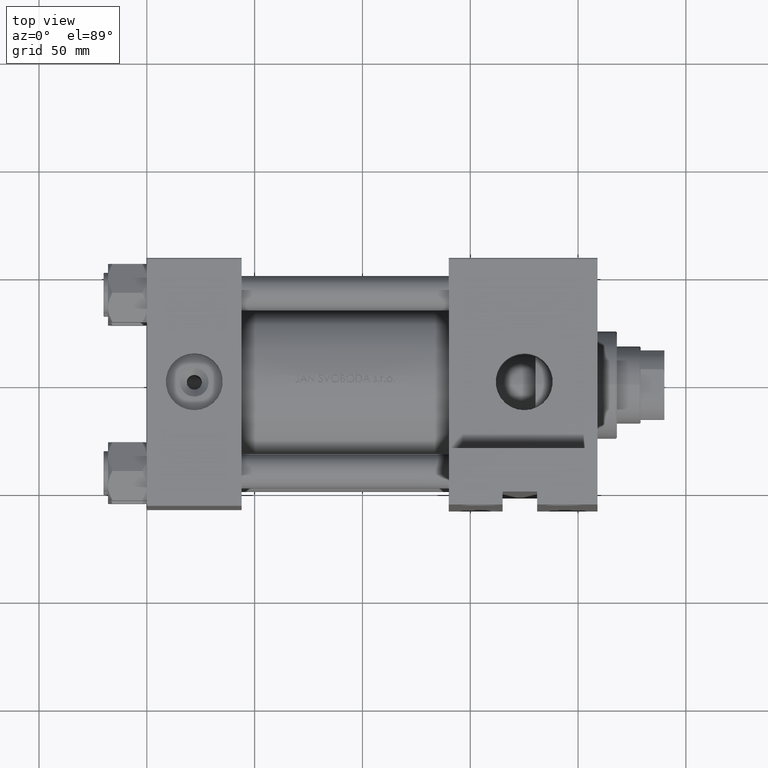
[diagram: clean part render]
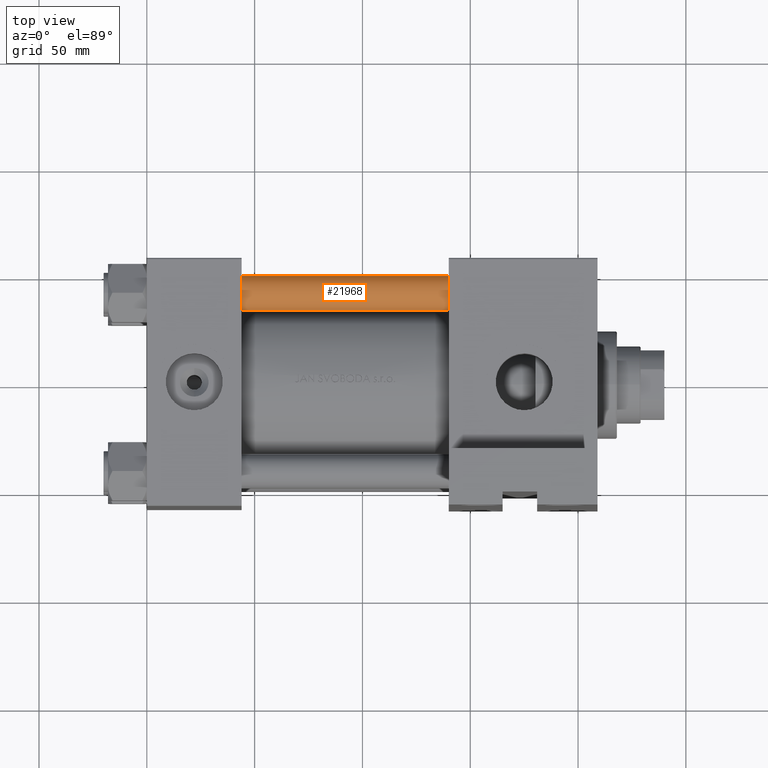
[diagram: same view with one face highlighted and labeled with its STEP entity id]
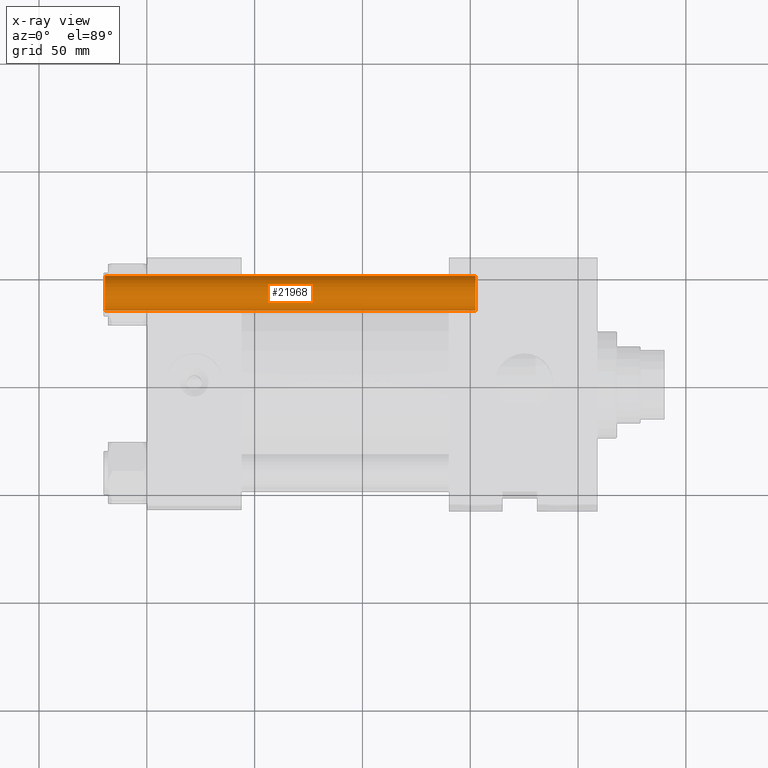
[diagram: x-ray of the same camera — body ghosted, the highlighted face saturated]
A machine part, top view. The second image highlights one B-rep face of the part: STEP entity #21968.
The next image is the same camera in x-ray: the body ghosted, the highlighted face saturated — about 0% of this face is hidden behind the body in this view.
In plain terms, the highlighted cylindrical surface (edge-blend (fillet) strip) has radius 8 mm, axis along (1, -0, 0).
Its self-contained STEP definition (entity closure, byte-faithful):
#241 = VERTEX_POINT ( 'NONE', #9211 ) ;
#999 = VECTOR ( 'NONE', #21178, 1000.000000000000000 ) ;
#1554 = CARTESIAN_POINT ( 'NONE',  ( 0.000000000000000000, 0.000000000000000000, 173.0000000000000000 ) ) ;
#1898 = CIRCLE ( 'NONE', #35267, 8.000000000000000000 ) ;
#3617 = EDGE_CURVE ( 'NONE', #241, #6375, #1898, .T. ) ;
#4803 = ORIENTED_EDGE ( 'NONE', *, *, #33465, .T. ) ;
#6375 = VERTEX_POINT ( 'NONE', #35346 ) ;
#6388 = LINE ( 'NONE', #17528, #999 ) ;
#7408 = DIRECTION ( 'NONE',  ( -0.000000000000000000, -0.000000000000000000, 1.000000000000000000 ) ) ;
#7512 = ORIENTED_EDGE ( 'NONE', *, *, #27787, .F. ) ;
#8030 = CARTESIAN_POINT ( 'NONE',  ( 8.000000000000000000, 9.797174393178825657E-16, 172.5000000000000000 ) ) ;
#8102 = EDGE_CURVE ( 'NONE', #12311, #241, #10601, .T. ) ;
#9098 = CYLINDRICAL_SURFACE ( 'NONE', #19418, 8.000000000000000000 ) ;
#9211 = CARTESIAN_POINT ( 'NONE',  ( -8.000000000000000000, 0.000000000000000000, 0.4999999999999449329 ) ) ;
#10601 = LINE ( 'NONE', #25886, #27657 ) ;
#12311 = VERTEX_POINT ( 'NONE', #41539 ) ;
#15297 = AXIS2_PLACEMENT_3D ( 'NONE', #34223, #31054, #26432 ) ;
#16360 = DIRECTION ( 'NONE',  ( -0.000000000000000000, -0.000000000000000000, -1.000000000000000000 ) ) ;
#17295 = ORIENTED_EDGE ( 'NONE', *, *, #8102, .T. ) ;
#17528 = CARTESIAN_POINT ( 'NONE',  ( 8.000000000000000000, 9.797174393178825657E-16, 173.0000000000000000 ) ) ;
#19418 = AXIS2_PLACEMENT_3D ( 'NONE', #1554, #16360, #31204 ) ;
#21178 = DIRECTION ( 'NONE',  ( -0.000000000000000000, -0.000000000000000000, -1.000000000000000000 ) ) ;
#21968 = ADVANCED_FACE ( 'NONE', ( #34843 ), #9098, .T. ) ;
#24843 = EDGE_LOOP ( 'NONE', ( #7512, #4803, #17295, #40815 ) ) ;
#25886 = CARTESIAN_POINT ( 'NONE',  ( -8.000000000000000000, 0.000000000000000000, 173.0000000000000000 ) ) ;
#26432 = DIRECTION ( 'NONE',  ( 1.000000000000000000, 0.000000000000000000, 0.000000000000000000 ) ) ;
#26964 = CIRCLE ( 'NONE', #15297, 8.000000000000000000 ) ;
#27657 = VECTOR ( 'NONE', #32715, 1000.000000000000000 ) ;
#27787 = EDGE_CURVE ( 'NONE', #30911, #6375, #6388, .T. ) ;
#30911 = VERTEX_POINT ( 'NONE', #8030 ) ;
#31054 = DIRECTION ( 'NONE',  ( 0.000000000000000000, 0.000000000000000000, -1.000000000000000000 ) ) ;
#31204 = DIRECTION ( 'NONE',  ( -1.000000000000000000, 0.000000000000000000, 0.000000000000000000 ) ) ;
#32715 = DIRECTION ( 'NONE',  ( -0.000000000000000000, -0.000000000000000000, -1.000000000000000000 ) ) ;
#33465 = EDGE_CURVE ( 'NONE', #30911, #12311, #26964, .T. ) ;
#34223 = CARTESIAN_POINT ( 'NONE',  ( 0.000000000000000000, 0.000000000000000000, 172.5000000000000000 ) ) ;
#34843 = FACE_OUTER_BOUND ( 'NONE', #24843, .T. ) ;
#35267 = AXIS2_PLACEMENT_3D ( 'NONE', #44625, #7408, #47796 ) ;
#35346 = CARTESIAN_POINT ( 'NONE',  ( 8.000000000000000000, 9.797174393178825657E-16, 0.4999999999999449329 ) ) ;
#40815 = ORIENTED_EDGE ( 'NONE', *, *, #3617, .T. ) ;
#41539 = CARTESIAN_POINT ( 'NONE',  ( -8.000000000000000000, 0.000000000000000000, 172.5000000000000000 ) ) ;
#44625 = CARTESIAN_POINT ( 'NONE',  ( 0.000000000000000000, 0.000000000000000000, 0.4999999999999449329 ) ) ;
#47796 = DIRECTION ( 'NONE',  ( 1.000000000000000000, 0.000000000000000000, 0.000000000000000000 ) ) ;